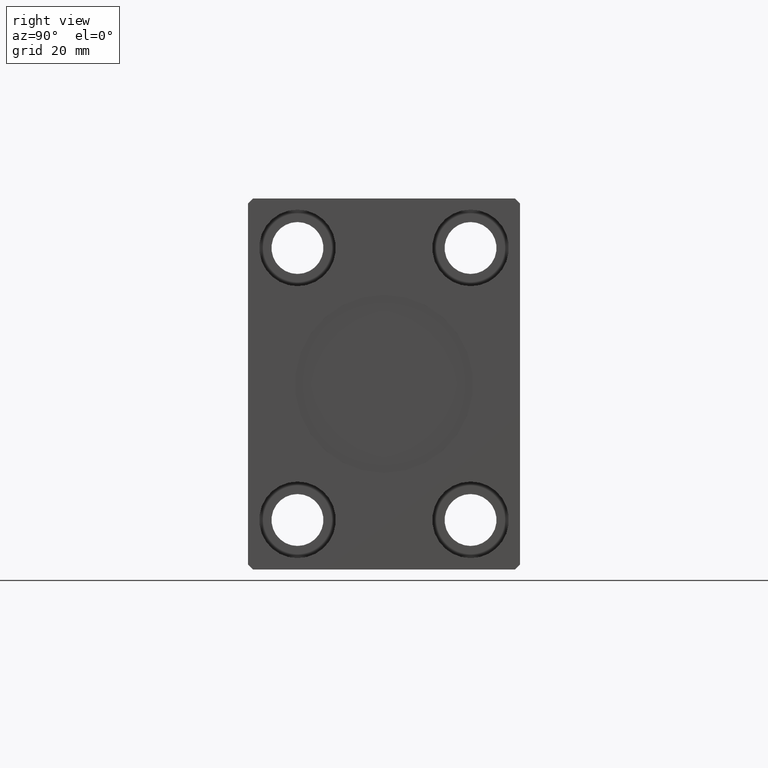
[diagram: clean part render]
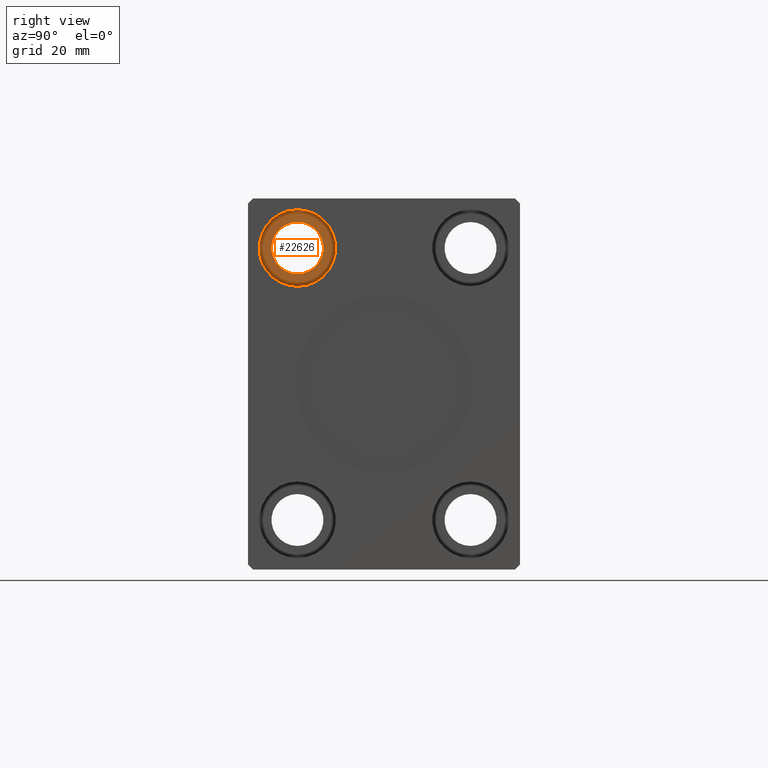
[diagram: same view with one face highlighted and labeled with its STEP entity id]
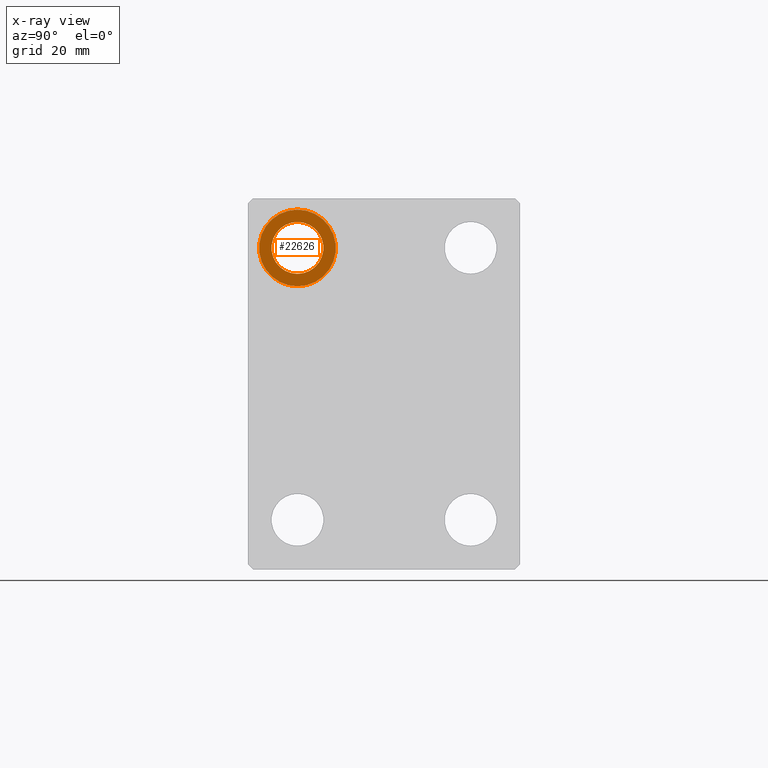
[diagram: x-ray of the same camera — body ghosted, the highlighted face saturated]
A machine part, right view. The second image highlights one B-rep face of the part: STEP entity #22626.
The next image is the same camera in x-ray: the body ghosted, the highlighted face saturated — about 0% of this face is hidden behind the body in this view.
In plain terms, the highlighted planar face has unit normal (1, 0, -0).
Its self-contained STEP definition (entity closure, byte-faithful):
#1764 = DIRECTION ( 'NONE',  ( 0.000000000000000000, 0.000000000000000000, -1.000000000000000000 ) ) ;
#2407 = DIRECTION ( 'NONE',  ( 1.000000000000000000, 0.000000000000000000, 0.000000000000000000 ) ) ;
#2639 = DIRECTION ( 'NONE',  ( 0.000000000000000000, 0.000000000000000000, 1.000000000000000000 ) ) ;
#3770 = CARTESIAN_POINT ( 'NONE',  ( 104.6700000000000017, -17.50000000000000000, 27.50000000000000000 ) ) ;
#3969 = FACE_BOUND ( 'NONE', #11158, .T. ) ;
#4945 = AXIS2_PLACEMENT_3D ( 'NONE', #22433, #32569, #22645 ) ;
#8172 = AXIS2_PLACEMENT_3D ( 'NONE', #3770, #20569, #10451 ) ;
#9891 = CIRCLE ( 'NONE', #26401, 7.750000000000003553 ) ;
#10400 = EDGE_CURVE ( 'NONE', #21461, #36107, #9891, .T. ) ;
#10451 = DIRECTION ( 'NONE',  ( 0.000000000000000000, 0.000000000000000000, 1.000000000000000000 ) ) ;
#10898 = CARTESIAN_POINT ( 'NONE',  ( 104.6700000000000017, -17.50000000000000000, 19.74999999999999645 ) ) ;
#11158 = EDGE_LOOP ( 'NONE', ( #18708, #21984 ) ) ;
#11364 = CARTESIAN_POINT ( 'NONE',  ( 104.6700000000000017, -17.50000000000000000, 32.75000000000000000 ) ) ;
#12668 = EDGE_LOOP ( 'NONE', ( #25742, #31122 ) ) ;
#12990 = DIRECTION ( 'NONE',  ( -1.000000000000000000, -0.000000000000000000, -0.000000000000000000 ) ) ;
#13842 = CARTESIAN_POINT ( 'NONE',  ( 104.6700000000000017, -17.50000000000000000, 27.50000000000000000 ) ) ;
#16931 = VERTEX_POINT ( 'NONE', #11364 ) ;
#18594 = AXIS2_PLACEMENT_3D ( 'NONE', #13842, #2407, #1764 ) ;
#18708 = ORIENTED_EDGE ( 'NONE', *, *, #34536, .F. ) ;
#19749 = PLANE ( 'NONE',  #8172 ) ;
#20569 = DIRECTION ( 'NONE',  ( 1.000000000000000000, 0.000000000000000000, -0.000000000000000000 ) ) ;
#21262 = DIRECTION ( 'NONE',  ( 1.000000000000000000, 0.000000000000000000, 0.000000000000000000 ) ) ;
#21461 = VERTEX_POINT ( 'NONE', #10898 ) ;
#21920 = EDGE_CURVE ( 'NONE', #36107, #21461, #41428, .T. ) ;
#21984 = ORIENTED_EDGE ( 'NONE', *, *, #27092, .F. ) ;
#22433 = CARTESIAN_POINT ( 'NONE',  ( 104.6700000000000017, -17.50000000000000000, 27.50000000000000000 ) ) ;
#22626 = ADVANCED_FACE ( 'NONE', ( #3969, #39344 ), #19749, .T. ) ;
#22645 = DIRECTION ( 'NONE',  ( 0.000000000000000000, 0.000000000000000000, 1.000000000000000000 ) ) ;
#22832 = AXIS2_PLACEMENT_3D ( 'NONE', #38657, #21262, #40647 ) ;
#24326 = CARTESIAN_POINT ( 'NONE',  ( 104.6700000000000017, -17.50000000000000000, 22.25000000000000000 ) ) ;
#25742 = ORIENTED_EDGE ( 'NONE', *, *, #10400, .F. ) ;
#26401 = AXIS2_PLACEMENT_3D ( 'NONE', #28517, #12990, #2639 ) ;
#27092 = EDGE_CURVE ( 'NONE', #31715, #16931, #29605, .T. ) ;
#28517 = CARTESIAN_POINT ( 'NONE',  ( 104.6700000000000017, -17.50000000000000000, 27.50000000000000000 ) ) ;
#29605 = CIRCLE ( 'NONE', #18594, 5.250000000000000888 ) ;
#31122 = ORIENTED_EDGE ( 'NONE', *, *, #21920, .F. ) ;
#31715 = VERTEX_POINT ( 'NONE', #24326 ) ;
#32569 = DIRECTION ( 'NONE',  ( -1.000000000000000000, -0.000000000000000000, -0.000000000000000000 ) ) ;
#33125 = CIRCLE ( 'NONE', #22832, 5.250000000000000888 ) ;
#34536 = EDGE_CURVE ( 'NONE', #16931, #31715, #33125, .T. ) ;
#36107 = VERTEX_POINT ( 'NONE', #38346 ) ;
#38346 = CARTESIAN_POINT ( 'NONE',  ( 104.6700000000000017, -17.50000000000000000, 35.25000000000000000 ) ) ;
#38657 = CARTESIAN_POINT ( 'NONE',  ( 104.6700000000000017, -17.50000000000000000, 27.50000000000000000 ) ) ;
#39344 = FACE_OUTER_BOUND ( 'NONE', #12668, .T. ) ;
#40647 = DIRECTION ( 'NONE',  ( 0.000000000000000000, 0.000000000000000000, -1.000000000000000000 ) ) ;
#41428 = CIRCLE ( 'NONE', #4945, 7.750000000000003553 ) ;